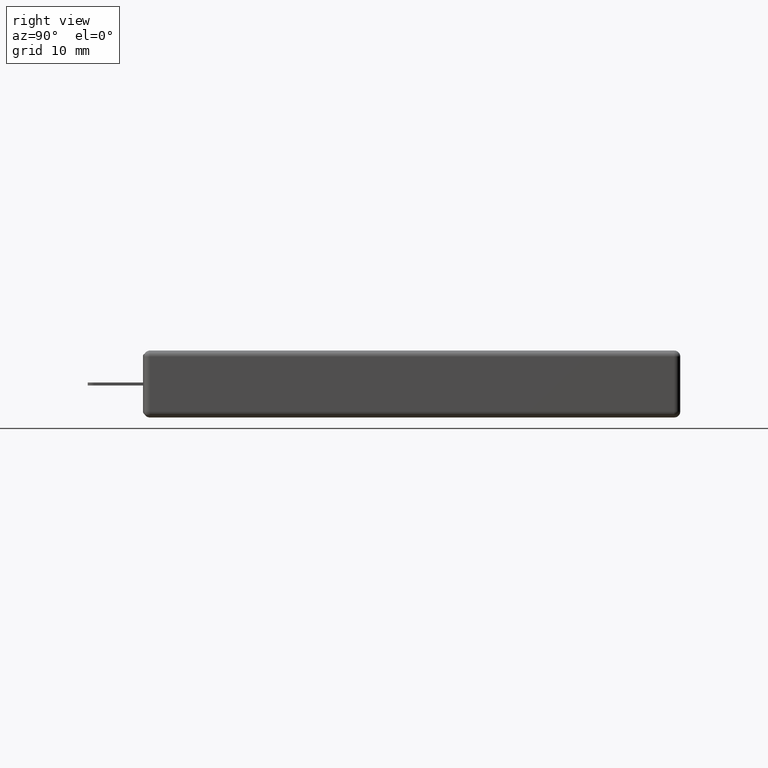
[diagram: clean part render]
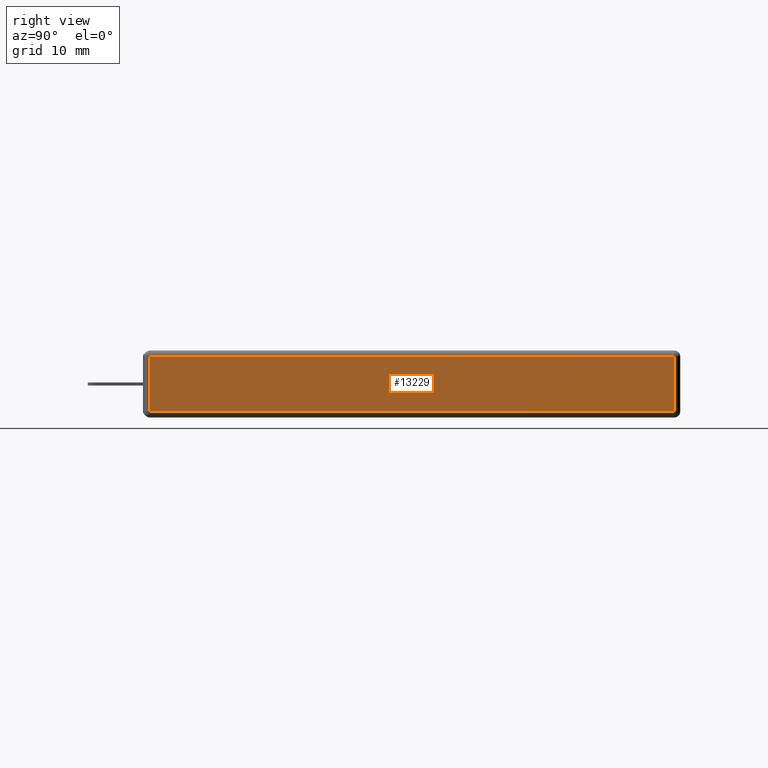
[diagram: same view with one face highlighted and labeled with its STEP entity id]
A machine part, right view. The second image highlights one B-rep face of the part: STEP entity #13229.
In plain terms, the highlighted planar face has unit normal (1, 0, 0).
Its self-contained STEP definition (entity closure, byte-faithful):
#248 = EDGE_CURVE ( 'NONE', #13259, #4473, #12037, .T. ) ;
#260 = AXIS2_PLACEMENT_3D ( 'NONE', #5198, #3060, #10609 ) ;
#822 = DIRECTION ( 'NONE',  ( -0.0000000000000000000, -0.0000000000000000000, -1.000000000000000000 ) ) ;
#2004 = PLANE ( 'NONE',  #260 ) ;
#2224 = LINE ( 'NONE', #4838, #8445 ) ;
#2944 = EDGE_LOOP ( 'NONE', ( #10039, #6474, #13974, #7138 ) ) ;
#3060 = DIRECTION ( 'NONE',  ( -1.000000000000000000, 0.0000000000000000000, 0.0000000000000000000 ) ) ;
#3533 = LINE ( 'NONE', #5012, #11827 ) ;
#3972 = VERTEX_POINT ( 'NONE', #8540 ) ;
#4209 = VECTOR ( 'NONE', #10300, 39.37007874015748100 ) ;
#4473 = VERTEX_POINT ( 'NONE', #10323 ) ;
#4692 = DIRECTION ( 'NONE',  ( 0.0000000000000000000, 0.0000000000000000000, 1.000000000000000000 ) ) ;
#4838 = CARTESIAN_POINT ( 'NONE',  ( 0.0000000000000000000, 0.02999999999999998800, -0.3430000000000000300 ) ) ;
#5012 = CARTESIAN_POINT ( 'NONE',  ( 0.0000000000000000000, 2.719999999999999800, -0.3430000000000000300 ) ) ;
#5198 = CARTESIAN_POINT ( 'NONE',  ( 0.0000000000000000000, 0.0000000000000000000, -0.3430000000000000300 ) ) ;
#5399 = VECTOR ( 'NONE', #10024, 39.37007874015748100 ) ;
#6474 = ORIENTED_EDGE ( 'NONE', *, *, #8611, .T. ) ;
#7138 = ORIENTED_EDGE ( 'NONE', *, *, #8815, .T. ) ;
#7510 = CARTESIAN_POINT ( 'NONE',  ( 0.0000000000000000000, 0.02999999999999998800, -0.02999999999999999900 ) ) ;
#8170 = EDGE_CURVE ( 'NONE', #8946, #3972, #11677, .T. ) ;
#8445 = VECTOR ( 'NONE', #4692, 39.37007874015748100 ) ;
#8540 = CARTESIAN_POINT ( 'NONE',  ( 0.0000000000000000000, 0.02999999999999998800, -0.3130000000000000000 ) ) ;
#8611 = EDGE_CURVE ( 'NONE', #3972, #13259, #2224, .T. ) ;
#8815 = EDGE_CURVE ( 'NONE', #4473, #8946, #3533, .T. ) ;
#8946 = VERTEX_POINT ( 'NONE', #12799 ) ;
#10024 = DIRECTION ( 'NONE',  ( -0.0000000000000000000, 1.000000000000000000, -0.0000000000000000000 ) ) ;
#10039 = ORIENTED_EDGE ( 'NONE', *, *, #8170, .T. ) ;
#10300 = DIRECTION ( 'NONE',  ( 0.0000000000000000000, -1.000000000000000000, 0.0000000000000000000 ) ) ;
#10323 = CARTESIAN_POINT ( 'NONE',  ( 0.0000000000000000000, 2.719999999999999800, -0.02999999999999999900 ) ) ;
#10498 = FACE_OUTER_BOUND ( 'NONE', #2944, .T. ) ;
#10609 = DIRECTION ( 'NONE',  ( 0.0000000000000000000, 0.0000000000000000000, 1.000000000000000000 ) ) ;
#11352 = CARTESIAN_POINT ( 'NONE',  ( 0.0000000000000000000, 0.0000000000000000000, -0.3130000000000000000 ) ) ;
#11677 = LINE ( 'NONE', #11352, #4209 ) ;
#11827 = VECTOR ( 'NONE', #822, 39.37007874015748100 ) ;
#12037 = LINE ( 'NONE', #12186, #5399 ) ;
#12186 = CARTESIAN_POINT ( 'NONE',  ( 0.0000000000000000000, 2.750000000000000000, -0.02999999999999999900 ) ) ;
#12799 = CARTESIAN_POINT ( 'NONE',  ( 0.0000000000000000000, 2.719999999999999800, -0.3130000000000000000 ) ) ;
#13229 = ADVANCED_FACE ( 'NONE', ( #10498 ), #2004, .T. ) ;
#13259 = VERTEX_POINT ( 'NONE', #7510 ) ;
#13974 = ORIENTED_EDGE ( 'NONE', *, *, #248, .T. ) ;